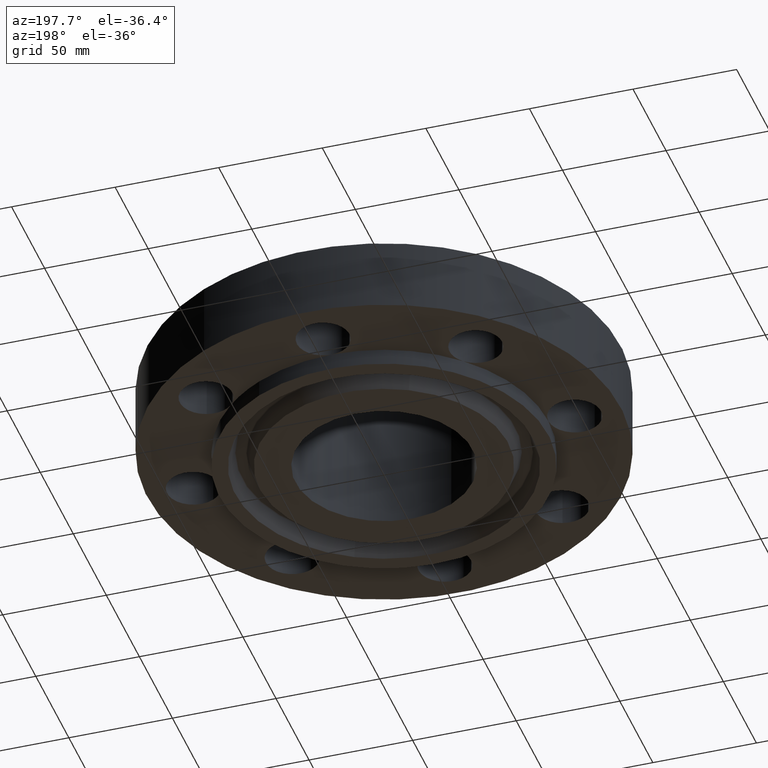
[diagram: clean part render]
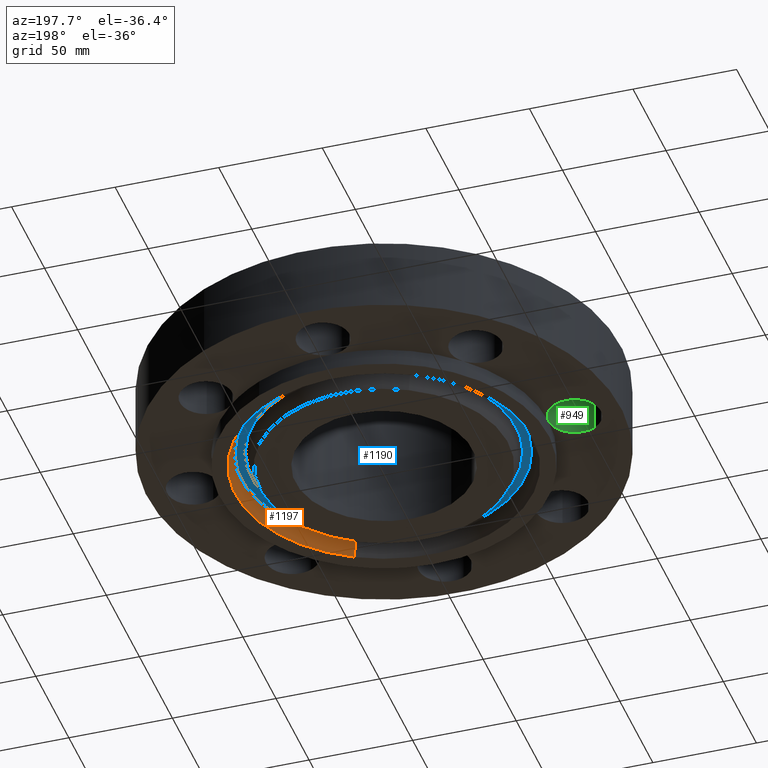
[diagram: same view with three faces highlighted in distinct colors, each labeled with its STEP entity id]
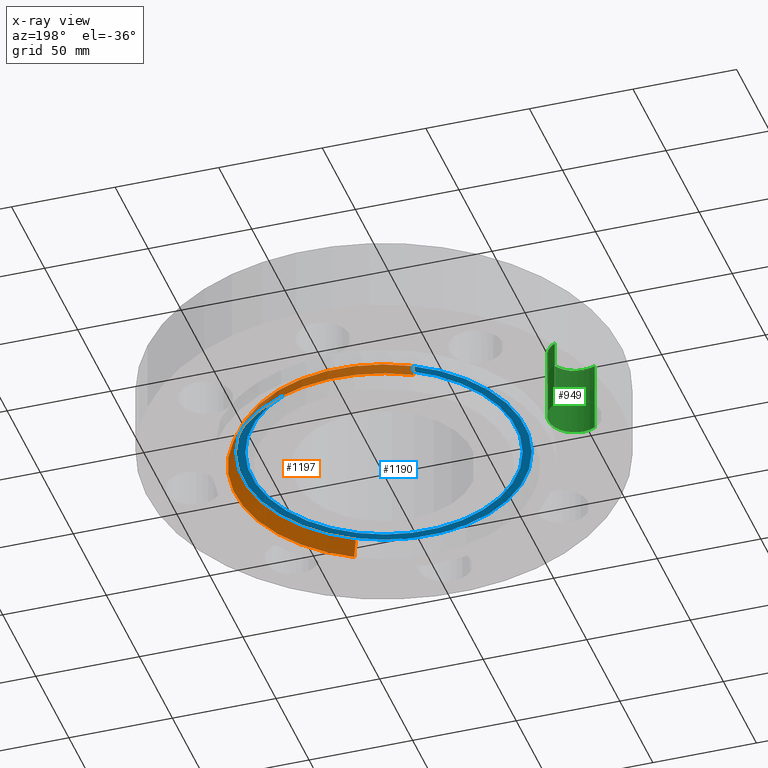
[diagram: x-ray of the same camera — body ghosted, the three highlighted faces saturated]
A machine part, auxiliary view with three faces highlighted in distinct colors.
The next image is the same camera in x-ray (body ghosted, the three faces saturated) — at least one of them is partly hidden behind the body in this view.
Their STEP definitions:

[orange] entity #1197 — the highlighted conical surface has half-angle 23 deg.
#1058=AXIS2_PLACEMENT_3D('Circle Axis2P3D',#1056,#1057,$) ;
#1132=AXIS2_PLACEMENT_3D('Cone Axis2P3D',#1129,#1130,#1131) ;
#1153=AXIS2_PLACEMENT_3D('Circle Axis2P3D',#1151,#1152,$) ;
#1051=CARTESIAN_POINT('Vertex',(1.35605513595,-2.48224227632,-0.313000000001)) ;
#1053=CARTESIAN_POINT('Vertex',(-1.35605513595,2.48224227632,-0.313000000001)) ;
#1056=CARTESIAN_POINT('Axis2P3D Location',(-5.59482469102E-016,-5.59482469102E-016,-0.313000000001)) ;
#1098=CARTESIAN_POINT('Vertex',(-1.29620201235,2.37268186847,-0.0188873350169)) ;
#1100=CARTESIAN_POINT('Vertex',(1.29620201235,-2.37268186847,-0.0188873350169)) ;
#1129=CARTESIAN_POINT('Axis2P3D Location',(0.,0.,-0.0188873350169)) ;
#1134=CARTESIAN_POINT('Line Origine',(-1.32612857415,2.42746207239,-0.165943667509)) ;
#1139=CARTESIAN_POINT('Line Origine',(1.32612857415,-2.42746207239,-0.165943667509)) ;
#1151=CARTESIAN_POINT('Axis2P3D Location',(0.,0.,-0.0188873350169)) ;
#1057=DIRECTION('Axis2P3D Direction',(0.,0.,-0.0393700787402)) ;
#1130=DIRECTION('Axis2P3D Direction',(-0.,-0.,-0.0393700787402)) ;
#1131=DIRECTION('Axis2P3D XDirection',(-0.0188750212049,0.0345504945626,0.)) ;
#1135=DIRECTION('Vector Direction',(-0.00737505833565,0.0134999537303,-0.0362403485611)) ;
#1140=DIRECTION('Vector Direction',(0.00737505833565,-0.0134999537303,-0.0362403485611)) ;
#1152=DIRECTION('Axis2P3D Direction',(0.,0.,0.0393700787402)) ;
#1136=VECTOR('Line Direction',#1135,0.0393700787402) ;
#1141=VECTOR('Line Direction',#1140,0.0393700787402) ;
#1192=ORIENTED_EDGE('',*,*,#1060,.T.) ;
#1193=ORIENTED_EDGE('',*,*,#1143,.T.) ;
#1194=ORIENTED_EDGE('',*,*,#1155,.T.) ;
#1195=ORIENTED_EDGE('',*,*,#1138,.F.) ;
#1197=ADVANCED_FACE('PartBody',(#1196),#1133,.F.) ;
#1059=CIRCLE('generated circle',#1058,2.82850000001) ;
#1154=CIRCLE('generated circle',#1153,2.7036565806) ;
#1133=CONICAL_SURFACE('Cone',#1132,2.7036565806,0.401425727959) ;
#1060=EDGE_CURVE('',#1054,#1052,#1059,.T.) ;
#1138=EDGE_CURVE('',#1054,#1099,#1137,.F.) ;
#1143=EDGE_CURVE('',#1052,#1101,#1142,.F.) ;
#1155=EDGE_CURVE('',#1101,#1099,#1154,.T.) ;
#1191=EDGE_LOOP('',(#1192,#1193,#1194,#1195)) ;
#1196=FACE_OUTER_BOUND('',#1191,.T.) ;
#1137=LINE('Line',#1134,#1136) ;
#1142=LINE('Line',#1139,#1141) ;
#1052=VERTEX_POINT('',#1051) ;
#1054=VERTEX_POINT('',#1053) ;
#1099=VERTEX_POINT('',#1098) ;
#1101=VERTEX_POINT('',#1100) ;

[blue] entity #1190 — the highlighted planar face has unit normal (0, 0, -1).
#554=AXIS2_PLACEMENT_3D('Plane Axis2P3D',#551,#552,#553) ;
#1112=AXIS2_PLACEMENT_3D('Circle Axis2P3D',#1110,#1111,$) ;
#1158=AXIS2_PLACEMENT_3D('Circle Axis2P3D',#1156,#1157,$) ;
#1174=AXIS2_PLACEMENT_3D('Circle Axis2P3D',#1172,#1173,$) ;
#1183=AXIS2_PLACEMENT_3D('Circle Axis2P3D',#1181,#1182,$) ;
#551=CARTESIAN_POINT('Axis2P3D Location',(0.,3.12500000001,0.)) ;
#1107=CARTESIAN_POINT('Vertex',(-1.28252129276,2.34763947924,-1.26757746906E-016)) ;
#1110=CARTESIAN_POINT('Axis2P3D Location',(0.,0.,-1.26757746906E-016)) ;
#1114=CARTESIAN_POINT('Vertex',(1.28252129276,-2.34763947924,-1.26757746906E-016)) ;
#1156=CARTESIAN_POINT('Axis2P3D Location',(0.,0.,-1.26757746906E-016)) ;
#1172=CARTESIAN_POINT('Axis2P3D Location',(0.,0.,0.)) ;
#1176=CARTESIAN_POINT('Vertex',(1.20473840152,-2.20525885187,1.31128703696E-016)) ;
#1178=CARTESIAN_POINT('Vertex',(-1.20473840152,2.20525885187,1.31128703696E-016)) ;
#1181=CARTESIAN_POINT('Axis2P3D Location',(0.,0.,0.)) ;
#552=DIRECTION('Axis2P3D Direction',(0.,0.,-0.0393700787402)) ;
#553=DIRECTION('Axis2P3D XDirection',(0.0393700787402,0.,0.)) ;
#1111=DIRECTION('Axis2P3D Direction',(0.,0.,0.0393700787402)) ;
#1157=DIRECTION('Axis2P3D Direction',(0.,0.,0.0393700787402)) ;
#1173=DIRECTION('Axis2P3D Direction',(0.,0.,-0.0393700787402)) ;
#1182=DIRECTION('Axis2P3D Direction',(0.,0.,-0.0393700787402)) ;
#1169=ORIENTED_EDGE('',*,*,#1116,.F.) ;
#1170=ORIENTED_EDGE('',*,*,#1160,.F.) ;
#1187=ORIENTED_EDGE('',*,*,#1180,.T.) ;
#1188=ORIENTED_EDGE('',*,*,#1185,.T.) ;
#1189=FACE_BOUND('',#1186,.T.) ;
#1190=ADVANCED_FACE('PartBody',(#1171,#1189),#555,.T.) ;
#1113=CIRCLE('generated circle',#1112,2.67512093014) ;
#1159=CIRCLE('generated circle',#1158,2.67512093014) ;
#1175=CIRCLE('generated circle',#1174,2.51287906988) ;
#1184=CIRCLE('generated circle',#1183,2.51287906988) ;
#1116=EDGE_CURVE('',#1108,#1115,#1113,.T.) ;
#1160=EDGE_CURVE('',#1115,#1108,#1159,.T.) ;
#1180=EDGE_CURVE('',#1177,#1179,#1175,.F.) ;
#1185=EDGE_CURVE('',#1179,#1177,#1184,.F.) ;
#1168=EDGE_LOOP('',(#1169,#1170)) ;
#1186=EDGE_LOOP('',(#1187,#1188)) ;
#1171=FACE_OUTER_BOUND('',#1168,.T.) ;
#555=PLANE('',#554) ;
#1108=VERTEX_POINT('',#1107) ;
#1115=VERTEX_POINT('',#1114) ;
#1177=VERTEX_POINT('',#1176) ;
#1179=VERTEX_POINT('',#1178) ;

[green] entity #949 — the highlighted cylindrical surface (edge-blend (fillet) strip) has radius 12.7 mm, axis along (0, 0, -1).
#619=AXIS2_PLACEMENT_3D('Circle Axis2P3D',#617,#618,$) ;
#633=AXIS2_PLACEMENT_3D('Circle Axis2P3D',#631,#632,$) ;
#909=AXIS2_PLACEMENT_3D('Cylinder Axis2P3D',#906,#907,#908) ;
#939=AXIS2_PLACEMENT_3D('Circle Axis2P3D',#937,#938,$) ;
#464=CARTESIAN_POINT('Vertex',(-3.12500000001,-1.67844740731E-015,0.)) ;
#617=CARTESIAN_POINT('Axis2P3D Location',(-3.62500000001,-1.67844740731E-015,0.)) ;
#621=CARTESIAN_POINT('Vertex',(-3.38528723071,0.438791280947,0.)) ;
#628=CARTESIAN_POINT('Vertex',(-3.86471276932,-0.438791280947,0.)) ;
#631=CARTESIAN_POINT('Axis2P3D Location',(-3.62500000001,-1.67844740731E-015,0.)) ;
#906=CARTESIAN_POINT('Axis2P3D Location',(-3.62500000001,-1.22538416614E-015,1.37606299213)) ;
#911=CARTESIAN_POINT('Line Origine',(-3.86471276932,-0.438791280947,0.690000000003)) ;
#915=CARTESIAN_POINT('Vertex',(-3.86471276932,-0.438791280947,1.38000000001)) ;
#918=CARTESIAN_POINT('Line Origine',(-3.38528723071,0.438791280947,0.690000000003)) ;
#922=CARTESIAN_POINT('Vertex',(-3.38528723071,0.438791280947,1.38000000001)) ;
#937=CARTESIAN_POINT('Axis2P3D Location',(-3.62500000001,-1.22538416614E-015,1.38000000001)) ;
#618=DIRECTION('Axis2P3D Direction',(0.,0.,-0.0393700787402)) ;
#632=DIRECTION('Axis2P3D Direction',(0.,0.,-0.0393700787402)) ;
#907=DIRECTION('Axis2P3D Direction',(0.,0.,-0.0393700787402)) ;
#908=DIRECTION('Axis2P3D XDirection',(0.0188750212049,0.0345504945626,0.)) ;
#912=DIRECTION('Vector Direction',(0.,0.,-0.0393700787402)) ;
#919=DIRECTION('Vector Direction',(0.,0.,-0.0393700787402)) ;
#938=DIRECTION('Axis2P3D Direction',(0.,0.,-0.0393700787402)) ;
#913=VECTOR('Line Direction',#912,0.0393700787402) ;
#920=VECTOR('Line Direction',#919,0.0393700787402) ;
#943=ORIENTED_EDGE('',*,*,#924,.F.) ;
#944=ORIENTED_EDGE('',*,*,#623,.T.) ;
#945=ORIENTED_EDGE('',*,*,#635,.T.) ;
#946=ORIENTED_EDGE('',*,*,#917,.T.) ;
#947=ORIENTED_EDGE('',*,*,#941,.F.) ;
#949=ADVANCED_FACE('PartBody',(#948),#910,.F.) ;
#620=CIRCLE('generated circle',#619,0.500000000002) ;
#634=CIRCLE('generated circle',#633,0.500000000002) ;
#940=CIRCLE('generated circle',#939,0.500000000002) ;
#910=CYLINDRICAL_SURFACE('generated cylinder',#909,0.500000000002) ;
#623=EDGE_CURVE('',#622,#465,#620,.T.) ;
#635=EDGE_CURVE('',#465,#629,#634,.T.) ;
#917=EDGE_CURVE('',#629,#916,#914,.F.) ;
#924=EDGE_CURVE('',#622,#923,#921,.F.) ;
#941=EDGE_CURVE('',#923,#916,#940,.T.) ;
#942=EDGE_LOOP('',(#943,#944,#945,#946,#947)) ;
#948=FACE_OUTER_BOUND('',#942,.T.) ;
#914=LINE('Line',#911,#913) ;
#921=LINE('Line',#918,#920) ;
#465=VERTEX_POINT('',#464) ;
#622=VERTEX_POINT('',#621) ;
#629=VERTEX_POINT('',#628) ;
#916=VERTEX_POINT('',#915) ;
#923=VERTEX_POINT('',#922) ;